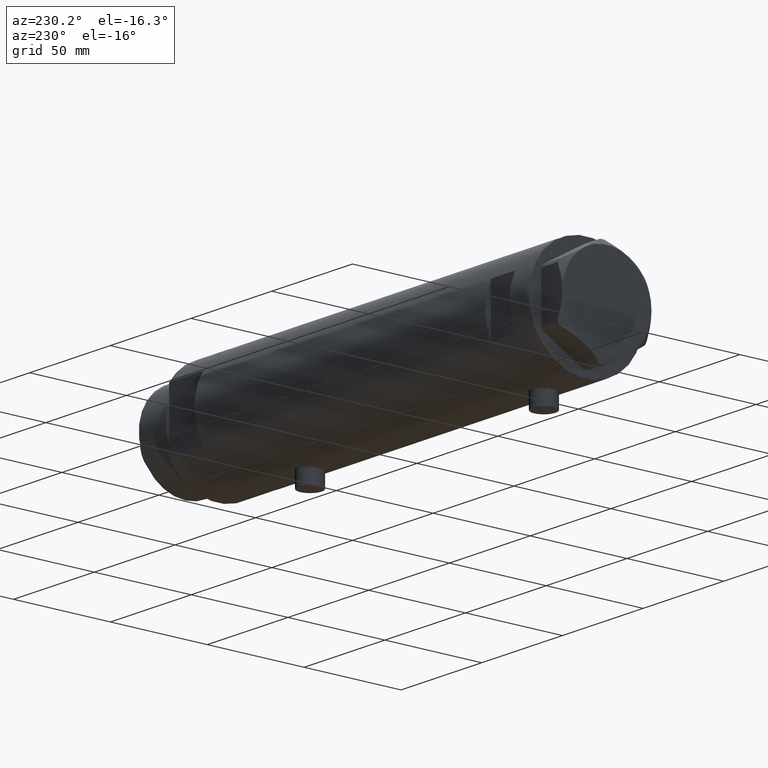
[diagram: clean part render]
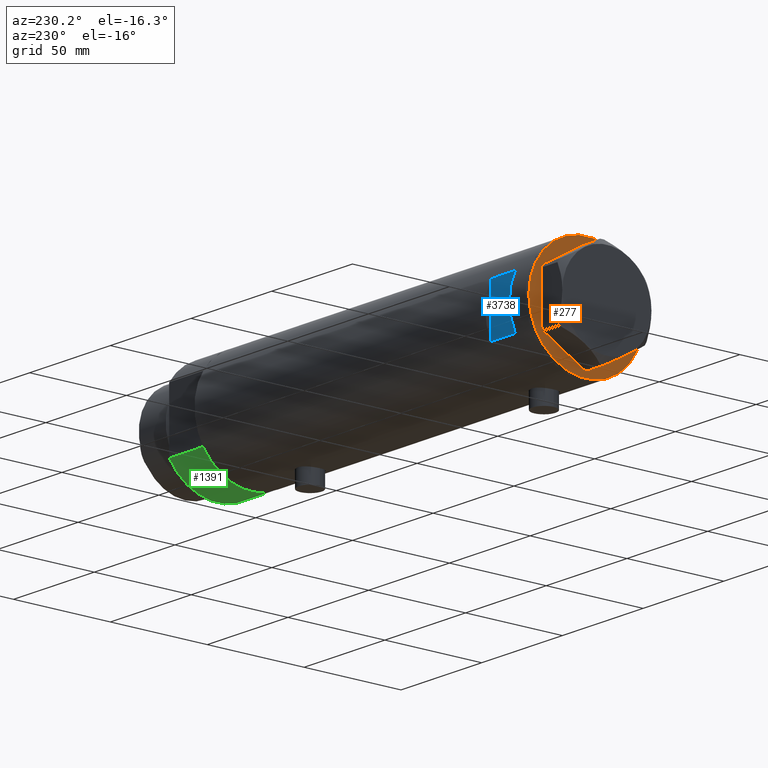
[diagram: same view with three faces highlighted in distinct colors, each labeled with its STEP entity id]
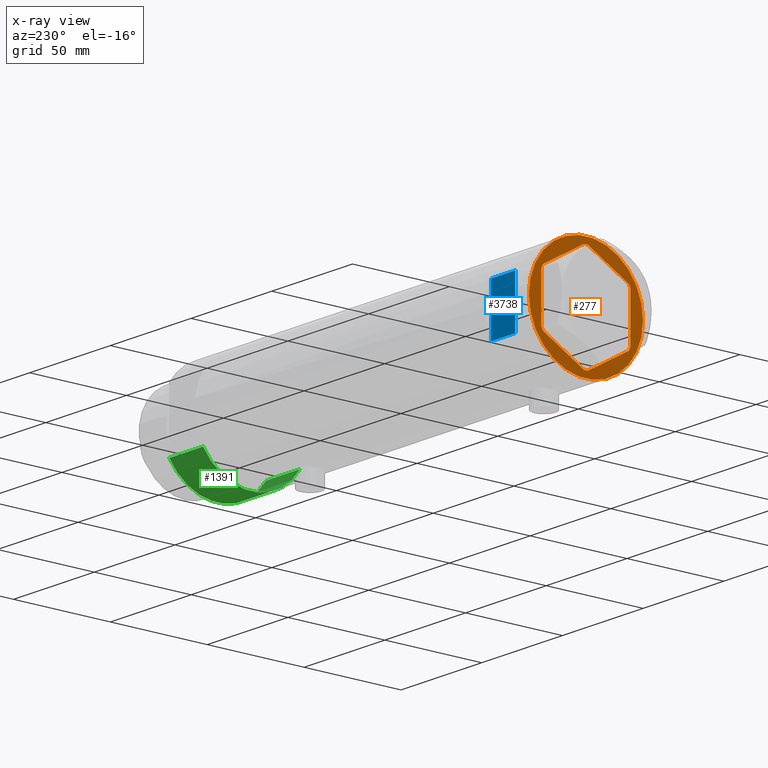
[diagram: x-ray of the same camera — body ghosted, the three highlighted faces saturated]
A machine part, auxiliary view with three faces highlighted in distinct colors.
The next image is the same camera in x-ray (body ghosted, the three faces saturated) — at least one of them is partly hidden behind the body in this view.
Their STEP definitions:

[orange] entity #277 — the highlighted planar face has unit normal (1, 0, -0).
#8 = CARTESIAN_POINT ( 'NONE',  ( 23.00000000000007461, -12.15905619136117721, 0.000000000000000000 ) ) ;
#35 = CARTESIAN_POINT ( 'NONE',  ( -22.03005154776132102, -13.83905619136147536, 0.000000000000000000 ) ) ;
#51 = VERTEX_POINT ( 'NONE', #3263 ) ;
#113 = EDGE_CURVE ( 'NONE', #3503, #882, #2695, .T. ) ;
#165 = DIRECTION ( 'NONE',  ( 0.000000000000000000, 0.000000000000000000, -1.000000000000000000 ) ) ;
#237 = DIRECTION ( 'NONE',  ( 3.527173405730720141E-15, -1.000000000000000000, 0.000000000000000000 ) ) ;
#261 = VECTOR ( 'NONE', #807, 999.9999999999998863 ) ;
#277 = ADVANCED_FACE ( 'NONE', ( #821, #3570 ), #4429, .F. ) ;
#441 = DIRECTION ( 'NONE',  ( 0.8660254037844345998, 0.5000000000000069944, 0.000000000000000000 ) ) ;
#479 = CARTESIAN_POINT ( 'NONE',  ( 29.50000000000000355, 0.000000000000000000, 0.000000000000000000 ) ) ;
#509 = VERTEX_POINT ( 'NONE', #3478 ) ;
#584 = VERTEX_POINT ( 'NONE', #35 ) ;
#628 = ORIENTED_EDGE ( 'NONE', *, *, #4372, .F. ) ;
#639 = CARTESIAN_POINT ( 'NONE',  ( 0.000000000000000000, 0.000000000000000000, 0.000000000000000000 ) ) ;
#663 = CARTESIAN_POINT ( 'NONE',  ( -0.9699484522385893870, 25.99811238272273073, 0.000000000000000000 ) ) ;
#668 = DIRECTION ( 'NONE',  ( 0.000000000000000000, 0.000000000000000000, -1.000000000000000000 ) ) ;
#755 = LINE ( 'NONE', #1828, #1253 ) ;
#807 = DIRECTION ( 'NONE',  ( -0.8660254037844415942, 0.4999999999999949485, 0.000000000000000000 ) ) ;
#821 = FACE_BOUND ( 'NONE', #1765, .T. ) ;
#845 = LINE ( 'NONE', #1181, #1466 ) ;
#866 = EDGE_CURVE ( 'NONE', #1373, #1738, #2259, .T. ) ;
#882 = VERTEX_POINT ( 'NONE', #2623 ) ;
#898 = CARTESIAN_POINT ( 'NONE',  ( 23.00000000000008527, -13.27905619136115867, 0.000000000000000000 ) ) ;
#931 = EDGE_CURVE ( 'NONE', #2009, #2767, #1315, .T. ) ;
#995 = ORIENTED_EDGE ( 'NONE', *, *, #113, .T. ) ;
#999 = ORIENTED_EDGE ( 'NONE', *, *, #1673, .T. ) ;
#1067 = CARTESIAN_POINT ( 'NONE',  ( 0.000000000000000000, 26.55811238272274366, 0.000000000000000000 ) ) ;
#1107 = ORIENTED_EDGE ( 'NONE', *, *, #931, .F. ) ;
#1125 = VERTEX_POINT ( 'NONE', #3531 ) ;
#1159 = DIRECTION ( 'NONE',  ( 0.5000000000000086597, -0.8660254037844337116, -0.000000000000000000 ) ) ;
#1181 = CARTESIAN_POINT ( 'NONE',  ( -22.51502577388055215, -12.99905619136159629, 0.000000000000000000 ) ) ;
#1253 = VECTOR ( 'NONE', #1456, 1000.000000000000000 ) ;
#1302 = DIRECTION ( 'NONE',  ( -1.000000000000000000, 0.000000000000000000, -0.000000000000000000 ) ) ;
#1315 = CIRCLE ( 'NONE', #3761, 29.50000000000000355 ) ;
#1373 = VERTEX_POINT ( 'NONE', #2579 ) ;
#1456 = DIRECTION ( 'NONE',  ( 0.8660254037844415942, -0.4999999999999950595, 0.000000000000000000 ) ) ;
#1466 = VECTOR ( 'NONE', #2595, 1000.000000000000000 ) ;
#1475 = ORIENTED_EDGE ( 'NONE', *, *, #3588, .F. ) ;
#1547 = DIRECTION ( 'NONE',  ( -1.000000000000000000, 0.000000000000000000, 0.000000000000000000 ) ) ;
#1620 = DIRECTION ( 'NONE',  ( -1.032024811306395780E-14, 1.000000000000000000, 0.000000000000000000 ) ) ;
#1673 = EDGE_CURVE ( 'NONE', #584, #1738, #845, .T. ) ;
#1738 = VERTEX_POINT ( 'NONE', #4092 ) ;
#1751 = EDGE_CURVE ( 'NONE', #1373, #509, #3095, .T. ) ;
#1765 = EDGE_LOOP ( 'NONE', ( #1475, #1909, #3627, #995, #2809, #4355, #1881, #999, #2106, #4460, #628, #3671 ) ) ;
#1828 = CARTESIAN_POINT ( 'NONE',  ( -22.99999999999990408, -13.27905619136147841, 0.000000000000000000 ) ) ;
#1829 = EDGE_CURVE ( 'NONE', #584, #51, #755, .T. ) ;
#1840 = ORIENTED_EDGE ( 'NONE', *, *, #2267, .F. ) ;
#1875 = LINE ( 'NONE', #3907, #3195 ) ;
#1881 = ORIENTED_EDGE ( 'NONE', *, *, #1829, .F. ) ;
#1909 = ORIENTED_EDGE ( 'NONE', *, *, #2762, .T. ) ;
#1914 = CARTESIAN_POINT ( 'NONE',  ( 0.000000000000000000, 0.000000000000000000, 0.000000000000000000 ) ) ;
#1984 = CARTESIAN_POINT ( 'NONE',  ( 0.9699484522385886098, 25.99811238272273783, 0.000000000000000000 ) ) ;
#2009 = VERTEX_POINT ( 'NONE', #2945 ) ;
#2020 = CARTESIAN_POINT ( 'NONE',  ( 22.99999999999982236, 12.15905619136166571, 0.000000000000000000 ) ) ;
#2027 = EDGE_CURVE ( 'NONE', #3503, #2592, #2602, .T. ) ;
#2047 = DIRECTION ( 'NONE',  ( -1.000000000000000000, 0.000000000000000000, 0.000000000000000000 ) ) ;
#2090 = VECTOR ( 'NONE', #3033, 1000.000000000000000 ) ;
#2106 = ORIENTED_EDGE ( 'NONE', *, *, #866, .F. ) ;
#2259 = LINE ( 'NONE', #3308, #3972 ) ;
#2267 = EDGE_CURVE ( 'NONE', #2767, #2009, #3269, .T. ) ;
#2307 = EDGE_LOOP ( 'NONE', ( #1840, #1107 ) ) ;
#2393 = EDGE_CURVE ( 'NONE', #1125, #51, #2971, .T. ) ;
#2450 = VECTOR ( 'NONE', #2715, 1000.000000000000227 ) ;
#2457 = VECTOR ( 'NONE', #2690, 1000.000000000000227 ) ;
#2561 = VERTEX_POINT ( 'NONE', #663 ) ;
#2579 = CARTESIAN_POINT ( 'NONE',  ( -22.99999999999999289, 12.15905619136131754, 0.000000000000000000 ) ) ;
#2592 = VERTEX_POINT ( 'NONE', #2020 ) ;
#2595 = DIRECTION ( 'NONE',  ( -0.5000000000000086597, 0.8660254037844337116, -0.000000000000000000 ) ) ;
#2602 = LINE ( 'NONE', #898, #3913 ) ;
#2623 = CARTESIAN_POINT ( 'NONE',  ( 22.03005154776153773, -13.83905619136115561, 0.000000000000000000 ) ) ;
#2646 = CARTESIAN_POINT ( 'NONE',  ( 0.000000000000000000, 0.000000000000000000, 0.000000000000000000 ) ) ;
#2690 = DIRECTION ( 'NONE',  ( -0.8660254037844380415, -0.5000000000000008882, 0.000000000000000000 ) ) ;
#2695 = LINE ( 'NONE', #3690, #2090 ) ;
#2710 = CARTESIAN_POINT ( 'NONE',  ( 22.03005154776124996, 13.83905619136162635, 0.000000000000000000 ) ) ;
#2715 = DIRECTION ( 'NONE',  ( 0.4999999999999986677, 0.8660254037844392627, -0.000000000000000000 ) ) ;
#2762 = EDGE_CURVE ( 'NONE', #2948, #2592, #4266, .T. ) ;
#2767 = VERTEX_POINT ( 'NONE', #479 ) ;
#2783 = EDGE_CURVE ( 'NONE', #2561, #3868, #1875, .T. ) ;
#2809 = ORIENTED_EDGE ( 'NONE', *, *, #4149, .F. ) ;
#2855 = LINE ( 'NONE', #3893, #261 ) ;
#2888 = DIRECTION ( 'NONE',  ( 1.000000000000000000, 3.576939520802682722E-15, -0.000000000000000000 ) ) ;
#2945 = CARTESIAN_POINT ( 'NONE',  ( -29.50000000000000355, 3.612708057484692393E-15, 0.000000000000000000 ) ) ;
#2948 = VERTEX_POINT ( 'NONE', #2710 ) ;
#2971 = LINE ( 'NONE', #3298, #3047 ) ;
#3033 = DIRECTION ( 'NONE',  ( -0.4999999999999915623, -0.8660254037844434816, -0.000000000000000000 ) ) ;
#3034 = AXIS2_PLACEMENT_3D ( 'NONE', #639, #3731, #1302 ) ;
#3047 = VECTOR ( 'NONE', #4275, 1000.000000000000000 ) ;
#3095 = LINE ( 'NONE', #4437, #2450 ) ;
#3193 = CARTESIAN_POINT ( 'NONE',  ( 1.854543075583504180E-13, -26.55811238272274366, 0.000000000000000000 ) ) ;
#3195 = VECTOR ( 'NONE', #2888, 1000.000000000000000 ) ;
#3212 = CARTESIAN_POINT ( 'NONE',  ( 22.51502577388055926, 12.99905619136160162, 0.000000000000000000 ) ) ;
#3263 = CARTESIAN_POINT ( 'NONE',  ( -0.9699484522383873264, -25.99811238272275205, 0.000000000000000000 ) ) ;
#3269 = CIRCLE ( 'NONE', #4417, 29.50000000000000355 ) ;
#3298 = CARTESIAN_POINT ( 'NONE',  ( 1.859873512960652550E-13, -25.99811238272274139, 0.000000000000000000 ) ) ;
#3308 = CARTESIAN_POINT ( 'NONE',  ( -22.99999999999999645, 13.27905619136132032, 0.000000000000000000 ) ) ;
#3382 = LINE ( 'NONE', #3193, #3785 ) ;
#3478 = CARTESIAN_POINT ( 'NONE',  ( -22.03005154776141339, 13.83905619136132792, 0.000000000000000000 ) ) ;
#3503 = VERTEX_POINT ( 'NONE', #8 ) ;
#3531 = CARTESIAN_POINT ( 'NONE',  ( 0.9699484522387533669, -25.99811238272273428, 0.000000000000000000 ) ) ;
#3570 = FACE_OUTER_BOUND ( 'NONE', #2307, .T. ) ;
#3588 = EDGE_CURVE ( 'NONE', #2948, #3868, #2855, .T. ) ;
#3627 = ORIENTED_EDGE ( 'NONE', *, *, #2027, .F. ) ;
#3671 = ORIENTED_EDGE ( 'NONE', *, *, #2783, .T. ) ;
#3690 = CARTESIAN_POINT ( 'NONE',  ( 22.51502577388080795, -12.99905619136115398, 0.000000000000000000 ) ) ;
#3703 = VECTOR ( 'NONE', #1159, 999.9999999999998863 ) ;
#3731 = DIRECTION ( 'NONE',  ( 0.000000000000000000, 0.000000000000000000, -1.000000000000000000 ) ) ;
#3761 = AXIS2_PLACEMENT_3D ( 'NONE', #2646, #165, #1547 ) ;
#3785 = VECTOR ( 'NONE', #441, 999.9999999999998863 ) ;
#3868 = VERTEX_POINT ( 'NONE', #1984 ) ;
#3893 = CARTESIAN_POINT ( 'NONE',  ( 22.99999999999981171, 13.27905619136164184, 0.000000000000000000 ) ) ;
#3907 = CARTESIAN_POINT ( 'NONE',  ( -9.299367564803055752E-14, 25.99811238272273428, 0.000000000000000000 ) ) ;
#3913 = VECTOR ( 'NONE', #1620, 1000.000000000000000 ) ;
#3972 = VECTOR ( 'NONE', #237, 1000.000000000000000 ) ;
#4092 = CARTESIAN_POINT ( 'NONE',  ( -22.99999999999990763, -12.15905619136148985, 0.000000000000000000 ) ) ;
#4148 = LINE ( 'NONE', #1067, #2457 ) ;
#4149 = EDGE_CURVE ( 'NONE', #1125, #882, #3382, .T. ) ;
#4266 = LINE ( 'NONE', #3212, #3703 ) ;
#4275 = DIRECTION ( 'NONE',  ( -1.000000000000000000, -7.153879041605523216E-15, -0.000000000000000000 ) ) ;
#4355 = ORIENTED_EDGE ( 'NONE', *, *, #2393, .T. ) ;
#4372 = EDGE_CURVE ( 'NONE', #2561, #509, #4148, .T. ) ;
#4417 = AXIS2_PLACEMENT_3D ( 'NONE', #1914, #668, #2047 ) ;
#4429 = PLANE ( 'NONE',  #3034 ) ;
#4437 = CARTESIAN_POINT ( 'NONE',  ( -22.51502577388069781, 12.99905619136134050, 0.000000000000000000 ) ) ;
#4460 = ORIENTED_EDGE ( 'NONE', *, *, #1751, .T. ) ;

[blue] entity #3738 — the highlighted planar face has unit normal (0, -1, -0).
#394 = FACE_OUTER_BOUND ( 'NONE', #1269, .T. ) ;
#428 = CARTESIAN_POINT ( 'NONE',  ( -29.50000000000000355, 26.50000000000000355, 92.59999999999999432 ) ) ;
#457 = VECTOR ( 'NONE', #1367, 1000.000000000000000 ) ;
#458 = CARTESIAN_POINT ( 'NONE',  ( -29.50000000000000355, 26.50000000000000355, 92.59999999999999432 ) ) ;
#499 = DIRECTION ( 'NONE',  ( -0.000000000000000000, -0.000000000000000000, -1.000000000000000000 ) ) ;
#703 = ORIENTED_EDGE ( 'NONE', *, *, #3230, .F. ) ;
#738 = ORIENTED_EDGE ( 'NONE', *, *, #1990, .T. ) ;
#909 = VERTEX_POINT ( 'NONE', #3999 ) ;
#957 = VECTOR ( 'NONE', #1153, 1000.000000000000000 ) ;
#1122 = EDGE_CURVE ( 'NONE', #909, #1511, #3560, .T. ) ;
#1139 = CARTESIAN_POINT ( 'NONE',  ( 12.96148139681571898, 26.50000000000000355, 77.59999999999999432 ) ) ;
#1153 = DIRECTION ( 'NONE',  ( 1.000000000000000000, -0.000000000000000000, -0.000000000000000000 ) ) ;
#1269 = EDGE_LOOP ( 'NONE', ( #4112, #703, #738, #4012 ) ) ;
#1367 = DIRECTION ( 'NONE',  ( 0.000000000000000000, 0.000000000000000000, 1.000000000000000000 ) ) ;
#1511 = VERTEX_POINT ( 'NONE', #1646 ) ;
#1646 = CARTESIAN_POINT ( 'NONE',  ( 12.96148139681573319, 26.49999999999998934, 92.59999999999999432 ) ) ;
#1677 = EDGE_CURVE ( 'NONE', #1511, #1809, #2213, .T. ) ;
#1700 = VECTOR ( 'NONE', #3178, 1000.000000000000000 ) ;
#1809 = VERTEX_POINT ( 'NONE', #1139 ) ;
#1990 = EDGE_CURVE ( 'NONE', #3994, #909, #3366, .T. ) ;
#2056 = AXIS2_PLACEMENT_3D ( 'NONE', #458, #4168, #2818 ) ;
#2102 = VECTOR ( 'NONE', #499, 1000.000000000000000 ) ;
#2126 = PLANE ( 'NONE',  #2056 ) ;
#2142 = LINE ( 'NONE', #3510, #1700 ) ;
#2213 = LINE ( 'NONE', #3585, #2102 ) ;
#2337 = CARTESIAN_POINT ( 'NONE',  ( -12.96148139681573319, 26.49999999999999645, -102.5999999999999943 ) ) ;
#2818 = DIRECTION ( 'NONE',  ( 0.000000000000000000, 0.000000000000000000, -1.000000000000000000 ) ) ;
#3178 = DIRECTION ( 'NONE',  ( 1.000000000000000000, -0.000000000000000000, -0.000000000000000000 ) ) ;
#3230 = EDGE_CURVE ( 'NONE', #3994, #1809, #2142, .T. ) ;
#3366 = LINE ( 'NONE', #2337, #457 ) ;
#3510 = CARTESIAN_POINT ( 'NONE',  ( -29.50000000000000355, 26.50000000000000355, 77.59999999999999432 ) ) ;
#3511 = CARTESIAN_POINT ( 'NONE',  ( -12.96148139681574030, 26.50000000000000355, 77.59999999999999432 ) ) ;
#3560 = LINE ( 'NONE', #428, #957 ) ;
#3585 = CARTESIAN_POINT ( 'NONE',  ( 12.96148139681573319, 26.49999999999999645, -102.5999999999999943 ) ) ;
#3738 = ADVANCED_FACE ( 'NONE', ( #394 ), #2126, .F. ) ;
#3994 = VERTEX_POINT ( 'NONE', #3511 ) ;
#3999 = CARTESIAN_POINT ( 'NONE',  ( -12.96148139681573319, 26.49999999999998934, 92.59999999999999432 ) ) ;
#4012 = ORIENTED_EDGE ( 'NONE', *, *, #1122, .T. ) ;
#4112 = ORIENTED_EDGE ( 'NONE', *, *, #1677, .T. ) ;
#4168 = DIRECTION ( 'NONE',  ( 0.000000000000000000, -1.000000000000000000, -0.000000000000000000 ) ) ;

[green] entity #1391 — the highlighted cylindrical surface (partial cylindrical patch) has radius 29.5 mm, axis along (-1, -0, 0).
#143 = CYLINDRICAL_SURFACE ( 'NONE', #3905, 29.50000000000000355 ) ;
#212 = ORIENTED_EDGE ( 'NONE', *, *, #1749, .F. ) ;
#296 = VERTEX_POINT ( 'NONE', #3412 ) ;
#304 = LINE ( 'NONE', #2388, #3264 ) ;
#460 = CIRCLE ( 'NONE', #4424, 29.50000000000000355 ) ;
#569 = DIRECTION ( 'NONE',  ( 0.000000000000000000, 0.000000000000000000, 1.000000000000000000 ) ) ;
#760 = DIRECTION ( 'NONE',  ( -0.000000000000000000, -0.000000000000000000, -1.000000000000000000 ) ) ;
#770 = DIRECTION ( 'NONE',  ( -0.000000000000000000, -0.000000000000000000, 1.000000000000000000 ) ) ;
#967 = VERTEX_POINT ( 'NONE', #1372 ) ;
#1225 = LINE ( 'NONE', #2594, #1923 ) ;
#1256 = DIRECTION ( 'NONE',  ( -1.000000000000000000, 0.000000000000000000, 0.000000000000000000 ) ) ;
#1292 = CARTESIAN_POINT ( 'NONE',  ( 0.000000000000000000, 0.000000000000000000, 0.000000000000000000 ) ) ;
#1335 = EDGE_CURVE ( 'NONE', #3748, #296, #1380, .T. ) ;
#1372 = CARTESIAN_POINT ( 'NONE',  ( 15.66045976336582690, 25.00000000000000000, 0.000000000000000000 ) ) ;
#1380 = CIRCLE ( 'NONE', #3976, 29.50000000000000355 ) ;
#1391 = ADVANCED_FACE ( 'NONE', ( #3234 ), #143, .T. ) ;
#1749 = EDGE_CURVE ( 'NONE', #3856, #3748, #304, .T. ) ;
#1923 = VECTOR ( 'NONE', #770, 1000.000000000000000 ) ;
#2071 = CARTESIAN_POINT ( 'NONE',  ( 0.000000000000000000, 0.000000000000000000, 21.00000000000000000 ) ) ;
#2353 = ORIENTED_EDGE ( 'NONE', *, *, #3376, .T. ) ;
#2388 = CARTESIAN_POINT ( 'NONE',  ( 15.66045976336583401, -25.00000000000000000, 0.000000000000000000 ) ) ;
#2594 = CARTESIAN_POINT ( 'NONE',  ( 15.66045976336583401, 25.00000000000000000, 0.000000000000000000 ) ) ;
#2627 = CARTESIAN_POINT ( 'NONE',  ( 0.000000000000000000, 0.000000000000000000, 21.00000000000000000 ) ) ;
#2675 = DIRECTION ( 'NONE',  ( 1.000000000000000000, 0.000000000000000000, 0.000000000000000000 ) ) ;
#2761 = DIRECTION ( 'NONE',  ( 0.000000000000000000, 0.000000000000000000, 1.000000000000000000 ) ) ;
#3064 = ORIENTED_EDGE ( 'NONE', *, *, #3221, .T. ) ;
#3221 = EDGE_CURVE ( 'NONE', #967, #296, #1225, .T. ) ;
#3234 = FACE_OUTER_BOUND ( 'NONE', #4096, .T. ) ;
#3264 = VECTOR ( 'NONE', #3755, 1000.000000000000000 ) ;
#3311 = CARTESIAN_POINT ( 'NONE',  ( 15.66045976336583401, -25.00000000000000000, 0.000000000000000000 ) ) ;
#3376 = EDGE_CURVE ( 'NONE', #3856, #967, #460, .T. ) ;
#3412 = CARTESIAN_POINT ( 'NONE',  ( 15.66045976336583045, 24.99999999999999645, 20.99999999999999645 ) ) ;
#3748 = VERTEX_POINT ( 'NONE', #3909 ) ;
#3755 = DIRECTION ( 'NONE',  ( -0.000000000000000000, -0.000000000000000000, 1.000000000000000000 ) ) ;
#3856 = VERTEX_POINT ( 'NONE', #3311 ) ;
#3905 = AXIS2_PLACEMENT_3D ( 'NONE', #2627, #760, #1256 ) ;
#3909 = CARTESIAN_POINT ( 'NONE',  ( 15.66045976336583045, -25.00000000000000000, 21.00000000000000355 ) ) ;
#3976 = AXIS2_PLACEMENT_3D ( 'NONE', #2071, #2761, #4138 ) ;
#4096 = EDGE_LOOP ( 'NONE', ( #4137, #212, #2353, #3064 ) ) ;
#4137 = ORIENTED_EDGE ( 'NONE', *, *, #1335, .F. ) ;
#4138 = DIRECTION ( 'NONE',  ( 1.000000000000000000, 0.000000000000000000, 0.000000000000000000 ) ) ;
#4424 = AXIS2_PLACEMENT_3D ( 'NONE', #1292, #569, #2675 ) ;